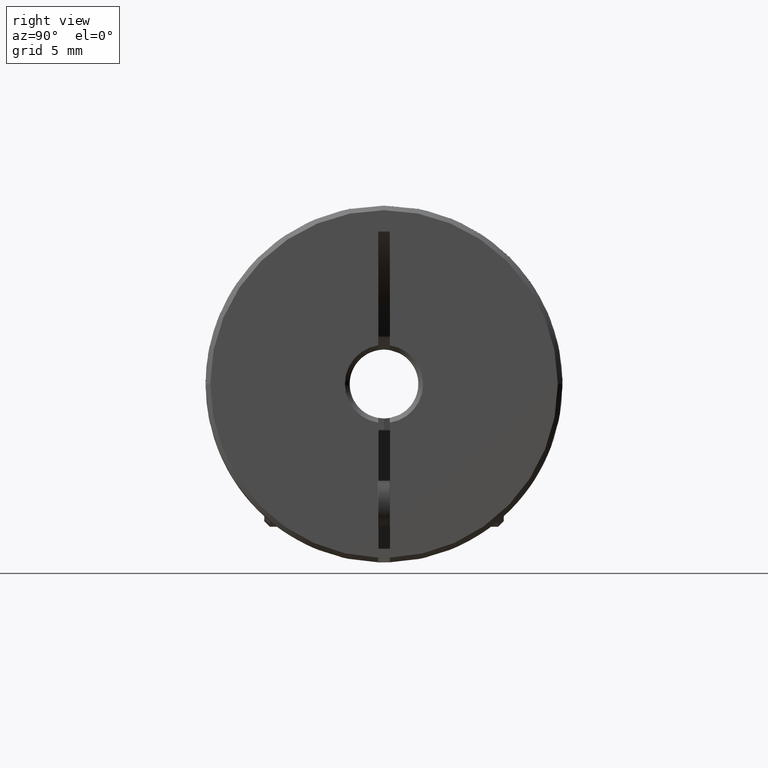
[diagram: clean part render]
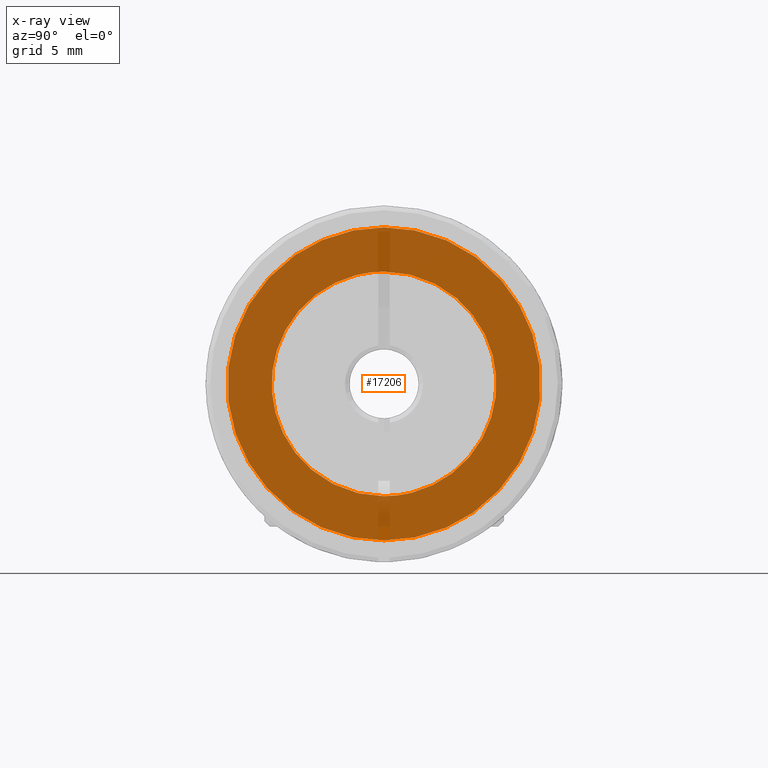
[diagram: x-ray — body ghosted, one internal face saturated and labeled with its STEP entity id]
A machine part, right view, then the same camera in x-ray: the body is ghosted and one INTERNAL B-rep face — a face not visible from any outside direction — is saturated and labeled: STEP entity #17206.
In plain terms, the highlighted planar face has unit normal (1, 0, -0).
Its self-contained STEP definition (entity closure, byte-faithful):
#41 = CARTESIAN_POINT ( 'NONE',  ( -0.3017066929133856434, 0.2634443512680011978, 0.04764816867437932785 ) ) ;
#84 = CARTESIAN_POINT ( 'NONE',  ( -0.3017066929133856434, -0.2148991425139813727, 0.1597773958210919332 ) ) ;
#94 = CARTESIAN_POINT ( 'NONE',  ( -0.3017066929133855879, 0.1764793355975048106, 0.07597440669499742893 ) ) ;
#144 = CARTESIAN_POINT ( 'NONE',  ( -0.3017066929133855879, 0.2472215217568769496, -0.1027373560989110063 ) ) ;
#160 = FACE_BOUND ( 'NONE', #4820, .T. ) ;
#168 = CARTESIAN_POINT ( 'NONE',  ( -0.3017066929133854769, 3.367172273551341089E-17, -0.1921259841171484295 ) ) ;
#192 = CARTESIAN_POINT ( 'NONE',  ( -0.3017066929133855879, -0.2616691484029767811, -0.05724531232257804025 ) ) ;
#249 = CARTESIAN_POINT ( 'NONE',  ( -0.3017066929133855879, 0.09047890071363717812, 0.2521137222691293145 ) ) ;
#278 = CARTESIAN_POINT ( 'NONE',  ( -0.3017066929133854769, -0.1774173848589738756, -0.07372996158252527465 ) ) ;
#299 = CARTESIAN_POINT ( 'NONE',  ( -0.3017066929133855879, -0.06356203882389535598, -0.2601263115402671078 ) ) ;
#354 = CARTESIAN_POINT ( 'NONE',  ( -0.3017066929133856434, 0.2662254475944536569, -0.03262693169461451659 ) ) ;
#363 = B_SPLINE_CURVE_WITH_KNOTS ( 'NONE', 3,
 ( #168, #11732, #8240, #5318, #8662, #11519, #11841, #6891, #2256, #14771, #11411, #10253, #14664, #16672, #8548, #598, #13313, #6563, #5100, #12980, #18139, #5209, #16565, #19498, #19390, #278, #19707, #3740, #14883, #19602, #3419, #10141, #2051, #4999, #3521, #385, #17827, #14986, #9827, #16250, #1947, #6669, #1842, #7000, #13091, #2159, #8344, #19820, #6784, #3628, #17935, #9933, #16354, #11624, #13197, #10033, #18038, #13416, #16459, #8446, #488, #5420, #18248, #3842, #995, #17190 ),
 .UNSPECIFIED., .F., .F.,
 ( 4, 1, 1, 1, 1, 2, 2, 1, 2, 2, 2, 1, 2, 2, 1, 1, 1, 2, 2, 2, 1, 1, 1, 1, 2, 2, 1, 2, 2, 2, 1, 2, 2, 1, 1, 2, 2, 1, 1, 1, 2, 2, 4 ),
 ( 0.0000000000000000000, 0.06250000000000041633, 0.09375000000000062450, 0.1093750000000007216, 0.1171875000000007772, 0.1210937500000008604, 0.1250000000000009437, 0.1562500000000012212, 0.1718750000000012490, 0.1875000000000013045, 0.2500000000000012768, 0.2812500000000013323, 0.2968750000000013878, 0.3125000000000014433, 0.3437500000000017208, 0.3593750000000018319, 0.3671875000000018319, 0.3710937500000018874, 0.3750000000000018874, 0.5000000000000018874, 0.5625000000000018874, 0.5937500000000018874, 0.6093750000000018874, 0.6171875000000017764, 0.6210937500000017764, 0.6250000000000017764, 0.6562500000000017764, 0.6718750000000017764, 0.6875000000000017764, 0.7500000000000018874, 0.7812500000000018874, 0.7968750000000018874, 0.8125000000000018874, 0.8437500000000018874, 0.8593750000000018874, 0.8671875000000017764, 0.8750000000000016653, 0.9062500000000014433, 0.9218750000000013323, 0.9296875000000012212, 0.9335937500000011102, 0.9375000000000009992, 1.000000000000000000 ),
 .UNSPECIFIED. ) ;
#385 = CARTESIAN_POINT ( 'NONE',  ( -0.3017066929133855879, -0.1797389799994455750, 0.06787524116459918433 ) ) ;
#403 = CARTESIAN_POINT ( 'NONE',  ( -0.3017066929133855879, -0.03262002748589796358, -0.2662267257904554207 ) ) ;
#472 = VERTEX_POINT ( 'NONE', #3604 ) ;
#488 = CARTESIAN_POINT ( 'NONE',  ( -0.3017066929133855879, -0.03801979431511910007, 0.1883280841707859754 ) ) ;
#598 = CARTESIAN_POINT ( 'NONE',  ( -0.3017066929133855324, -0.1264837597906122435, -0.1452213452114073655 ) ) ;
#950 = CARTESIAN_POINT ( 'NONE',  ( -0.3017066929133856434, 0.06073278447617427855, 0.1823250253209839078 ) ) ;
#995 = CARTESIAN_POINT ( 'NONE',  ( -0.3017066929133856434, -0.01175836420397940660, 0.1921259841546079372 ) ) ;
#1046 = CARTESIAN_POINT ( 'NONE',  ( -0.3017066929133856434, 0.07675108137136645026, 0.1762498013812585085 ) ) ;
#1093 = CARTESIAN_POINT ( 'NONE',  ( -0.3017066929133855324, 0.04165996228536091028, -0.2644692159776824703 ) ) ;
#1184 = ORIENTED_EDGE ( 'NONE', *, *, #1763, .T. ) ;
#1197 = CARTESIAN_POINT ( 'NONE',  ( -0.3017066929133855879, 0.04764816867437689230, -0.2634443512680014199 ) ) ;
#1350 = CARTESIAN_POINT ( 'NONE',  ( -0.3017066929133855879, 0.1532131545805348882, 0.1159730884570505521 ) ) ;
#1449 = CARTESIAN_POINT ( 'NONE',  ( -0.3017066929133856990, -0.06987222338621215667, 0.2586947543440086261 ) ) ;
#1462 = CARTESIAN_POINT ( 'NONE',  ( -0.3017066929133856434, 0.1264837597906474098, 0.1452213452113883252 ) ) ;
#1552 = CARTESIAN_POINT ( 'NONE',  ( -0.3017066929133855879, -0.2624247266507407361, 0.05297720132857115100 ) ) ;
#1562 = CARTESIAN_POINT ( 'NONE',  ( -0.3017066929133856434, 0.1023605774057313872, 0.1626208437812856900 ) ) ;
#1607 = CARTESIAN_POINT ( 'NONE',  ( -0.3017066929133855324, 0.2323907515470342855, 0.1330539286350604089 ) ) ;
#1650 = CARTESIAN_POINT ( 'NONE',  ( -0.3017066929133856990, -0.2050781903850349142, 0.1725277598777279486 ) ) ;
#1660 = CARTESIAN_POINT ( 'NONE',  ( -0.3017066929133855879, 0.1471715595208409610, 0.1238167504791770068 ) ) ;
#1710 = CARTESIAN_POINT ( 'NONE',  ( -0.3017066929133855879, 0.2485204501938230170, -0.09955330781033572274 ) ) ;
#1754 = CARTESIAN_POINT ( 'NONE',  ( -0.3017066929133855879, -0.2639632075664825606, -0.04468327314615948287 ) ) ;
#1763 = EDGE_CURVE ( 'NONE', #19738, #472, #6189, .T. ) ;
#1766 = CARTESIAN_POINT ( 'NONE',  ( -0.3017066929133855879, 0.1855234953787487096, -0.05064757010546512561 ) ) ;
#1817 = CARTESIAN_POINT ( 'NONE',  ( -0.3017066929133855879, 0.1058641245702942046, 0.2459147844425793594 ) ) ;
#1842 = CARTESIAN_POINT ( 'NONE',  ( -0.3017066929133855879, -0.1626208438297385706, 0.1023605773898124960 ) ) ;
#1921 = CARTESIAN_POINT ( 'NONE',  ( -0.3017066929133855879, 0.2480800698151733319, -0.1006461891803104997 ) ) ;
#1947 = CARTESIAN_POINT ( 'NONE',  ( -0.3017066929133855879, -0.1675550833919140503, 0.09406806364658271136 ) ) ;
#2021 = CARTESIAN_POINT ( 'NONE',  ( -0.3017066929133855879, 0.2148991425140299172, -0.1597773958210626788 ) ) ;
#2051 = CARTESIAN_POINT ( 'NONE',  ( -0.3017066929133855879, -0.1855234953787617269, 0.05064757010544659183 ) ) ;
#2075 = CARTESIAN_POINT ( 'NONE',  ( -0.3017066929133856434, -0.1597773958210627898, -0.2148991425140298617 ) ) ;
#2121 = B_SPLINE_CURVE_WITH_KNOTS ( 'NONE', 3,
 ( #18502, #4104, #10516, #2517, #950, #4204, #10609, #2617, #9020, #1046, #7466, #20281, #6282, #1562, #12496, #1462, #12701, #1660, #1350, #8066, #11338, #17446, #3031, #20591, #94, #2927, #4613, #9330, #18916, #15761, #9537, #4510, #1766, #14378, #3238, #6085, #20794, #6183, #11226, #20489, #17652, #7963, #17758, #6382, #11018, #16181, #9432, #12595, #15861, #19014, #3344, #9647, #7865, #14282, #12796, #7762, #10918, #20692, #9750, #17345, #4713, #4816, #19219, #17547, #16073, #19114 ),
 .UNSPECIFIED., .F., .F.,
 ( 4, 1, 1, 1, 1, 2, 2, 1, 2, 2, 2, 1, 2, 2, 1, 1, 1, 2, 2, 2, 1, 1, 1, 1, 2, 2, 1, 2, 2, 2, 1, 2, 2, 1, 1, 2, 2, 1, 1, 1, 2, 2, 4 ),
 ( 0.0000000000000000000, 0.06250000000000019429, 0.09375000000000027756, 0.1093750000000003053, 0.1171875000000003469, 0.1210937500000003331, 0.1250000000000003053, 0.1562500000000001943, 0.1718750000000001388, 0.1875000000000000833, 0.2499999999999997502, 0.2812499999999996114, 0.2968749999999995559, 0.3124999999999994449, 0.3437499999999991118, 0.3593749999999988898, 0.3671874999999987788, 0.3710937499999987232, 0.3749999999999986677, 0.4999999999999986677, 0.5624999999999986677, 0.5937499999999986677, 0.6093749999999986677, 0.6171874999999986677, 0.6210937499999986677, 0.6249999999999986677, 0.6562499999999986677, 0.6718749999999986677, 0.6874999999999985567, 0.7499999999999990008, 0.7812499999999991118, 0.7968749999999991118, 0.8124999999999992228, 0.8437499999999993339, 0.8593749999999993339, 0.8671874999999993339, 0.8749999999999993339, 0.9062499999999993339, 0.9218749999999994449, 0.9296874999999994449, 0.9335937499999994449, 0.9374999999999994449, 1.000000000000000000 ),
 .UNSPECIFIED. ) ;
#2159 = CARTESIAN_POINT ( 'NONE',  ( -0.3017066929133856434, -0.1311697068366785290, 0.1405384995318166574 ) ) ;
#2229 = CARTESIAN_POINT ( 'NONE',  ( -0.3017066929133855324, 0.03262002748591652512, 0.2662267257904554207 ) ) ;
#2256 = CARTESIAN_POINT ( 'NONE',  ( -0.3017066929133855879, -0.06996674299765927307, -0.1789348288021516686 ) ) ;
#2340 = CARTESIAN_POINT ( 'NONE',  ( -0.3017066929133855324, 0.05084865981369840471, 0.2628453632847724819 ) ) ;
#2517 = CARTESIAN_POINT ( 'NONE',  ( -0.3017066929133856434, 0.05065197033231246676, 0.1855217538326229543 ) ) ;
#2617 = CARTESIAN_POINT ( 'NONE',  ( -0.3017066929133855879, 0.06929954854565251177, 0.1791941634675335293 ) ) ;
#2663 = CARTESIAN_POINT ( 'NONE',  ( -0.3017066929133856434, 0.03459122235816080443, -0.2655283775204794194 ) ) ;
#2680 = ORIENTED_EDGE ( 'NONE', *, *, #7329, .T. ) ;
#2874 = CARTESIAN_POINT ( 'NONE',  ( -0.3017066929133855879, 0.04468486303288962680, -0.2639629134819499456 ) ) ;
#2927 = CARTESIAN_POINT ( 'NONE',  ( -0.3017066929133856434, 0.1774173848589663816, 0.07372996158254462029 ) ) ;
#2979 = CARTESIAN_POINT ( 'NONE',  ( -0.3017066929133856434, 0.1069506475217330693, -0.2455927376649895966 ) ) ;
#3020 = CARTESIAN_POINT ( 'NONE',  ( -0.3017066929133856990, -0.2497514438920577229, -0.09644363856348667219 ) ) ;
#3031 = CARTESIAN_POINT ( 'NONE',  ( -0.3017066929133855879, 0.1692488716473461163, 0.09133251806736228384 ) ) ;
#3124 = CARTESIAN_POINT ( 'NONE',  ( -0.3017066929133856434, -0.2215239849093198210, 0.1503482482320301350 ) ) ;
#3180 = CARTESIAN_POINT ( 'NONE',  ( -0.3017066929133856434, 0.2636138938659520758, 0.04669961500674715826 ) ) ;
#3192 = VERTEX_POINT ( 'NONE', #9064 ) ;
#3226 = CARTESIAN_POINT ( 'NONE',  ( -0.3017066929133855879, -0.2459147844425640383, 0.1058641245703254713 ) ) ;
#3238 = CARTESIAN_POINT ( 'NONE',  ( -0.3017066929133856434, 0.1805427786974521664, -0.06573692637925708515 ) ) ;
#3285 = CARTESIAN_POINT ( 'NONE',  ( -0.3017066929133856434, 0.2617748782861136769, -0.05616441327064453093 ) ) ;
#3334 = CARTESIAN_POINT ( 'NONE',  ( -0.3017066929133855879, -0.2504933135342075623, -0.09449829711491136708 ) ) ;
#3344 = CARTESIAN_POINT ( 'NONE',  ( -0.3017066929133855879, 0.09970514810676044115, -0.1643581846317471173 ) ) ;
#3395 = CARTESIAN_POINT ( 'NONE',  ( -0.3017066929133855879, 0.1272623904481321733, 0.2358407771276859743 ) ) ;
#3419 = CARTESIAN_POINT ( 'NONE',  ( -0.3017066929133856990, -0.1921273110860811095, 0.01220873402346659732 ) ) ;
#3500 = CARTESIAN_POINT ( 'NONE',  ( -0.3017066929133856990, 0.1958340877234115152, -0.1827753016552505494 ) ) ;
#3521 = CARTESIAN_POINT ( 'NONE',  ( -0.3017066929133855879, -0.1805427786974562188, 0.06573692637925133975 ) ) ;
#3599 = CARTESIAN_POINT ( 'NONE',  ( -0.3017066929133856990, 0.2504933135342242712, 0.09449829711483570538 ) ) ;
#3604 = CARTESIAN_POINT ( 'NONE',  ( -0.3017066929133856990, 4.484019189172476442E-17, -0.2677165354330707792 ) ) ;
#3628 = CARTESIAN_POINT ( 'NONE',  ( -0.3017066929133855879, -0.1078472446387096356, 0.1590337872247383211 ) ) ;
#3652 = CARTESIAN_POINT ( 'NONE',  ( -0.3017066929133855879, -0.2253406146660621723, -0.1445648055604512316 ) ) ;
#3740 = CARTESIAN_POINT ( 'NONE',  ( -0.3017066929133855879, -0.1783555444295481240, -0.07142999937213138917 ) ) ;
#3760 = CARTESIAN_POINT ( 'NONE',  ( -0.3017066929133856990, -0.2289042017769294945, -0.1388540622553818549 ) ) ;
#3842 = CARTESIAN_POINT ( 'NONE',  ( -0.3017066929133856434, -0.02341164105137143181, 0.1910568266526682657 ) ) ;
#3968 = CARTESIAN_POINT ( 'NONE',  ( -0.3017066929133855879, -0.1272623904480119639, -0.2358407771277377662 ) ) ;
#4094 = EDGE_CURVE ( 'NONE', #3192, #5412, #363, .T. ) ;
#4104 = CARTESIAN_POINT ( 'NONE',  ( -0.3017066929133856434, 0.01221208657455299246, 0.1921259841548527691 ) ) ;
#4204 = CARTESIAN_POINT ( 'NONE',  ( -0.3017066929133856990, 0.06573830145528559987, 0.1805422344199295037 ) ) ;
#4510 = CARTESIAN_POINT ( 'NONE',  ( -0.3017066929133855879, 0.1904421197410999522, -0.03020535433674568365 ) ) ;
#4601 = CARTESIAN_POINT ( 'NONE',  ( -0.3017066929133856434, -0.03459122235816080443, 0.2655283775204793639 ) ) ;
#4613 = CARTESIAN_POINT ( 'NONE',  ( -0.3017066929133855879, 0.1780337153989893229, 0.07222886205975560803 ) ) ;
#4702 = CARTESIAN_POINT ( 'NONE',  ( -0.3017066929133856434, -0.1958340877233743782, 0.1827753016552728371 ) ) ;
#4713 = CARTESIAN_POINT ( 'NONE',  ( -0.3017066929133856990, 0.03801979431511224444, -0.1883280841707871966 ) ) ;
#4762 = CARTESIAN_POINT ( 'NONE',  ( -0.3017066929133855879, 0.2624247266507408471, -0.05297720132856668929 ) ) ;
#4805 = CARTESIAN_POINT ( 'NONE',  ( -0.3017066929133856990, -0.2480800698151627570, 0.1006461891803347997 ) ) ;
#4816 = CARTESIAN_POINT ( 'NONE',  ( -0.3017066929133856434, 0.03649184386390869755, -0.1886300709777174456 ) ) ;
#4820 = EDGE_LOOP ( 'NONE', ( #17768, #5269 ) ) ;
#4863 = CARTESIAN_POINT ( 'NONE',  ( -0.3017066929133856434, 0.2677171734469657172, 0.008180479340402099786 ) ) ;
#4912 = CARTESIAN_POINT ( 'NONE',  ( -0.3017066929133855324, -0.05724531232248497581, 0.2616691484030003734 ) ) ;
#4973 = CARTESIAN_POINT ( 'NONE',  ( -0.3017066929133855879, 0.1483886281187818401, 0.2228406858414995473 ) ) ;
#4999 = CARTESIAN_POINT ( 'NONE',  ( -0.3017066929133856434, -0.1823260412492761218, 0.06073021767395828802 ) ) ;
#5018 = CARTESIAN_POINT ( 'NONE',  ( -0.3017066929133855879, -0.2630609601871485292, 0.04971999211072652969 ) ) ;
#5074 = CARTESIAN_POINT ( 'NONE',  ( -0.3017066929133855879, 0.06356203882392102988, 0.2601263115402600024 ) ) ;
#5100 = CARTESIAN_POINT ( 'NONE',  ( -0.3017066929133854769, -0.1532131545805589246, -0.1159730884570374376 ) ) ;
#5185 = CARTESIAN_POINT ( 'NONE',  ( -0.3017066929133855879, 0.2050781903850997234, -0.1725277598776891186 ) ) ;
#5209 = CARTESIAN_POINT ( 'NONE',  ( -0.3017066929133856434, -0.1643581846816395964, -0.09970514809175155813 ) ) ;
#5269 = ORIENTED_EDGE ( 'NONE', *, *, #4094, .T. ) ;
#5318 = CARTESIAN_POINT ( 'NONE',  ( -0.3017066929133855879, -0.05065197033231808726, -0.1855217538326227877 ) ) ;
#5335 = CARTESIAN_POINT ( 'NONE',  ( -0.3017066929133855879, -0.2323907515469471885, -0.1330539286351827555 ) ) ;
#5412 = VERTEX_POINT ( 'NONE', #17944 ) ;
#5420 = CARTESIAN_POINT ( 'NONE',  ( -0.3017066929133855324, -0.03649184386391227802, 0.1886300709777168072 ) ) ;
#5441 = CARTESIAN_POINT ( 'NONE',  ( -0.3017066929133855324, -0.2265289980310842277, -0.1426949681686026095 ) ) ;
#5926 = CARTESIAN_POINT ( 'NONE',  ( -0.3017066929133856990, 0.06987222338612777972, -0.2586947543440241692 ) ) ;
#6085 = CARTESIAN_POINT ( 'NONE',  ( -0.3017066929133856990, 0.1797389799994432436, -0.06787524116460255663 ) ) ;
#6173 = CARTESIAN_POINT ( 'NONE',  ( -0.3017066929133857545, -0.08430737880981649390, 0.2541615783569541875 ) ) ;
#6183 = CARTESIAN_POINT ( 'NONE',  ( -0.3017066929133855879, 0.1789348288680898402, -0.06996674299054291002 ) ) ;
#6189 = B_SPLINE_CURVE_WITH_KNOTS ( 'NONE', 3,
 ( #6479, #16063, #20783, #4601, #8156, #14271, #12895, #16169, #4912, #1449, #6173, #19310, #9740, #13004, #19005, #9422, #11437, #19102, #14577, #17851, #9848, #11005, #4702, #1650, #84, #15851, #3124, #17537, #17640, #9526, #20580, #3226, #7854, #4805, #11327, #12584, #15954, #7752, #14369, #1552, #9636, #5018, #17435, #6370, #20682, #7952, #12785, #19414, #1754, #19208, #17748, #192, #11215, #12691, #8055, #3334, #3020, #14471, #6583, #5335, #3760, #5441, #3652, #15112, #18059, #19728, #10056, #2075, #11858, #7019, #8364, #11752, #3968, #13434, #16271, #11542, #10164, #7129, #19622, #11960, #299, #19841, #8466, #16477, #17956, #403, #14905, #18268 ),
 .UNSPECIFIED., .F., .F.,
 ( 4, 1, 1, 1, 2, 2, 1, 1, 2, 2, 1, 1, 2, 2, 2, 1, 1, 2, 2, 1, 1, 1, 2, 2, 1, 1, 1, 2, 2, 2, 1, 1, 1, 2, 2, 1, 1, 2, 2, 1, 1, 2, 2, 2, 1, 1, 2, 2, 1, 1, 1, 2, 2, 1, 1, 1, 2, 2, 4 ),
 ( 0.0000000000000000000, 0.03125000000000065226, 0.04687500000000097145, 0.05468750000000112410, 0.05859375000000118655, 0.06250000000000124900, 0.09375000000000181799, 0.1093750000000020678, 0.1171875000000022343, 0.1250000000000023870, 0.1562500000000030254, 0.1718750000000033307, 0.1796875000000034694, 0.1875000000000036082, 0.2500000000000049960, 0.2812500000000056621, 0.2968750000000061062, 0.3046875000000062172, 0.3125000000000062172, 0.3437500000000062728, 0.3593750000000063283, 0.3671875000000063283, 0.3710937500000063838, 0.3750000000000063838, 0.4062500000000063838, 0.4218750000000063838, 0.4296875000000063838, 0.4335937500000063838, 0.4375000000000063838, 0.5000000000000064393, 0.5312500000000065503, 0.5468750000000065503, 0.5546875000000065503, 0.5585937500000065503, 0.5625000000000065503, 0.5937500000000062172, 0.6093750000000059952, 0.6171875000000058842, 0.6250000000000057732, 0.6562500000000054401, 0.6718750000000053291, 0.6796875000000052180, 0.6875000000000049960, 0.7500000000000039968, 0.7812500000000034417, 0.7968750000000031086, 0.8046875000000028866, 0.8125000000000027756, 0.8437500000000023315, 0.8593750000000021094, 0.8671875000000018874, 0.8710937500000018874, 0.8750000000000017764, 0.9062500000000013323, 0.9218750000000011102, 0.9296875000000009992, 0.9335937500000009992, 0.9375000000000008882, 1.000000000000000000 ),
 .UNSPECIFIED. ) ;
#6282 = CARTESIAN_POINT ( 'NONE',  ( -0.3017066929133856990, 0.09965596568261546329, 0.1642914523439757413 ) ) ;
#6329 = CARTESIAN_POINT ( 'NONE',  ( -0.3017066929133855879, 0.1619554494995473493, -0.2139729285998484831 ) ) ;
#6370 = CARTESIAN_POINT ( 'NONE',  ( -0.3017066929133855879, -0.2677152594052678025, 0.01636095868078933299 ) ) ;
#6382 = CARTESIAN_POINT ( 'NONE',  ( -0.3017066929133856990, 0.1535595567178518750, -0.1162237526632487611 ) ) ;
#6435 = CARTESIAN_POINT ( 'NONE',  ( -0.3017066929133857545, 0.2189015860743486475, -0.1541426186576217994 ) ) ;
#6479 = CARTESIAN_POINT ( 'NONE',  ( -0.3017066929133856990, -2.825754588938532754E-17, 0.2677165354330707792 ) ) ;
#6538 = CARTESIAN_POINT ( 'NONE',  ( -0.3017066929133855879, 0.1597773958211219925, 0.2148991425139707423 ) ) ;
#6563 = CARTESIAN_POINT ( 'NONE',  ( -0.3017066929133856434, -0.1471715595208715477, -0.1238167504791604367 ) ) ;
#6583 = CARTESIAN_POINT ( 'NONE',  ( -0.3017066929133856990, -0.2399922434024057971, -0.1192488602688097782 ) ) ;
#6644 = CARTESIAN_POINT ( 'NONE',  ( -0.3017066929133855879, 0.09955330781033565335, 0.2485204501938230448 ) ) ;
#6669 = CARTESIAN_POINT ( 'NONE',  ( -0.3017066929133855879, -0.1642914523938854010, 0.09965596566760706598 ) ) ;
#6759 = CARTESIAN_POINT ( 'NONE',  ( -0.3017066929133856434, 0.2644697044570707423, 0.04165732145656046714 ) ) ;
#6784 = CARTESIAN_POINT ( 'NONE',  ( -0.3017066929133855324, -0.1106349347517818077, 0.1571094479326815563 ) ) ;
#6891 = CARTESIAN_POINT ( 'NONE',  ( -0.3017066929133856434, -0.06929954854565308076, -0.1791941634675335848 ) ) ;
#7000 = CARTESIAN_POINT ( 'NONE',  ( -0.3017066929133856434, -0.1535595567178607845, 0.1162237526632131090 ) ) ;
#7019 = CARTESIAN_POINT ( 'NONE',  ( -0.3017066929133856990, -0.1503482482320197544, -0.2215239849093372237 ) ) ;
#7036 = EDGE_LOOP ( 'NONE', ( #2680, #1184 ) ) ;
#7078 = CARTESIAN_POINT ( 'NONE',  ( -0.3017066929133856434, 0.05297720132856666153, 0.2624247266507408471 ) ) ;
#7129 = CARTESIAN_POINT ( 'NONE',  ( -0.3017066929133855879, -0.09955330781033810972, -0.2485204501938223232 ) ) ;
#7278 = CARTESIAN_POINT ( 'NONE',  ( -0.3017066929133855879, 0.05616441327064454481, 0.2617748782861136769 ) ) ;
#7329 = EDGE_CURVE ( 'NONE', #472, #19738, #15699, .T. ) ;
#7466 = CARTESIAN_POINT ( 'NONE',  ( -0.3017066929133856434, 0.08557555538161330799, 0.1722312948429578772 ) ) ;
#7611 = CARTESIAN_POINT ( 'NONE',  ( -0.3017066929133856434, 0.09449829711484512840, -0.2504933135342228834 ) ) ;
#7710 = CARTESIAN_POINT ( 'NONE',  ( -0.3017066929133856990, 0.09644363856350064712, -0.2497514438920462043 ) ) ;
#7752 = CARTESIAN_POINT ( 'NONE',  ( -0.3017066929133855879, -0.2601263115402596138, 0.06356203882393376969 ) ) ;
#7762 = CARTESIAN_POINT ( 'NONE',  ( -0.3017066929133855879, 0.07216725141313663772, -0.1780635827710084496 ) ) ;
#7854 = CARTESIAN_POINT ( 'NONE',  ( -0.3017066929133854769, -0.2472215217568568546, 0.1027373560989571499 ) ) ;
#7865 = CARTESIAN_POINT ( 'NONE',  ( -0.3017066929133855879, 0.08116101609825540630, -0.1741956797675559276 ) ) ;
#7952 = CARTESIAN_POINT ( 'NONE',  ( -0.3017066929133855879, -0.2671589733414178047, -0.02040515359176650959 ) ) ;
#7963 = CARTESIAN_POINT ( 'NONE',  ( -0.3017066929133855879, 0.1642914523939000837, -0.09965596566757534136 ) ) ;
#8011 = CARTESIAN_POINT ( 'NONE',  ( -0.3017066929133856990, 0.2265289980311153417, 0.1426949681685589499 ) ) ;
#8055 = CARTESIAN_POINT ( 'NONE',  ( -0.3017066929133856990, -0.2519909923085757453, -0.09043039381628031892 ) ) ;
#8066 = CARTESIAN_POINT ( 'NONE',  ( -0.3017066929133855324, 0.1571094479766839969, 0.1106349347328549892 ) ) ;
#8115 = CARTESIAN_POINT ( 'NONE',  ( -0.3017066929133856434, 0.1725277598777682220, 0.2050781903850207588 ) ) ;
#8129 = FACE_OUTER_BOUND ( 'NONE', #7036, .T. ) ;
#8156 = CARTESIAN_POINT ( 'NONE',  ( -0.3017066929133856990, -0.04165996228536097273, 0.2644692159776825813 ) ) ;
#8214 = CARTESIAN_POINT ( 'NONE',  ( -0.3017066929133855879, 0.1027373560989383455, 0.2472215217568661527 ) ) ;
#8240 = CARTESIAN_POINT ( 'NONE',  ( -0.3017066929133856990, -0.03021122130203991035, -0.1904397976940205850 ) ) ;
#8318 = CARTESIAN_POINT ( 'NONE',  ( -0.3017066929133855879, 0.2521137222691292035, -0.09047890071363715037 ) ) ;
#8344 = CARTESIAN_POINT ( 'NONE',  ( -0.3017066929133855879, -0.1238167505034934862, 0.1471715594839397012 ) ) ;
#8364 = CARTESIAN_POINT ( 'NONE',  ( -0.3017066929133857545, -0.1483886281187989375, -0.2228406858414921921 ) ) ;
#8418 = CARTESIAN_POINT ( 'NONE',  ( -0.3017066929133855879, 0.2616691484030121417, 0.05724531232241676648 ) ) ;
#8446 = CARTESIAN_POINT ( 'NONE',  ( -0.3017066929133856434, -0.04030765712139981055, 0.1878615578181840884 ) ) ;
#8466 = CARTESIAN_POINT ( 'NONE',  ( -0.3017066929133855879, -0.05297720132855771036, -0.2624247266507433451 ) ) ;
#8548 = CARTESIAN_POINT ( 'NONE',  ( -0.3017066929133856434, -0.1162237526840336627, -0.1535595566768956644 ) ) ;
#8662 = CARTESIAN_POINT ( 'NONE',  ( -0.3017066929133855879, -0.06073278447617752596, -0.1823250253209839356 ) ) ;
#9020 = CARTESIAN_POINT ( 'NONE',  ( -0.3017066929133855879, 0.06996674299766118821, 0.1789348288021508082 ) ) ;
#9064 = CARTESIAN_POINT ( 'NONE',  ( -0.3017066929133854769, 3.367172273551341089E-17, -0.1921259841171484295 ) ) ;
#9330 = CARTESIAN_POINT ( 'NONE',  ( -0.3017066929133855879, 0.1783555444295475967, 0.07142999937213291572 ) ) ;
#9422 = CARTESIAN_POINT ( 'NONE',  ( -0.3017066929133855879, -0.1192488602688493854, 0.2399922434024140405 ) ) ;
#9432 = CARTESIAN_POINT ( 'NONE',  ( -0.3017066929133855879, 0.1238167505034259569, -0.1471715594839838881 ) ) ;
#9526 = CARTESIAN_POINT ( 'NONE',  ( -0.3017066929133855879, -0.2358407771276513909, 0.1272623904482033386 ) ) ;
#9537 = CARTESIAN_POINT ( 'NONE',  ( -0.3017066929133856434, 0.1921273110860710898, -0.01220873402348068848 ) ) ;
#9587 = CARTESIAN_POINT ( 'NONE',  ( -0.3017066929133856434, 0.2399922434025221207, 0.1192488602686467142 ) ) ;
#9636 = CARTESIAN_POINT ( 'NONE',  ( -0.3017066929133855879, -0.2628453632847724819, 0.05084865981370078475 ) ) ;
#9647 = CARTESIAN_POINT ( 'NONE',  ( -0.3017066929133856434, 0.09133251807967254776, -0.1692488715929594267 ) ) ;
#9694 = CARTESIAN_POINT ( 'NONE',  ( -0.3017066929133855879, 0.2586947543440292208, 0.06987222338609291872 ) ) ;
#9740 = CARTESIAN_POINT ( 'NONE',  ( -0.3017066929133854769, -0.09449829711486777695, 0.2504933135342186090 ) ) ;
#9750 = CARTESIAN_POINT ( 'NONE',  ( -0.3017066929133856434, 0.04561756357566153219, -0.1866781733333442994 ) ) ;
#9802 = CARTESIAN_POINT ( 'NONE',  ( -0.3017066929133856434, 0.2139729285998741015, 0.1619554494995217586 ) ) ;
#9819 = DIRECTION ( 'NONE',  ( 1.000000000000000000, 2.775557561562892584E-17, -1.550701171185240690E-17 ) ) ;
#9827 = CARTESIAN_POINT ( 'NONE',  ( -0.3017066929133855879, -0.1762498014435313343, 0.07675108136281552640 ) ) ;
#9848 = CARTESIAN_POINT ( 'NONE',  ( -0.3017066929133855879, -0.1619554494996910676, 0.2139729285997346575 ) ) ;
#9908 = CARTESIAN_POINT ( 'NONE',  ( -0.3017066929133854769, 0.1388540622553341708, -0.2289042017769686577 ) ) ;
#9933 = CARTESIAN_POINT ( 'NONE',  ( -0.3017066929133855879, -0.09133251807969491876, 0.1692488715929447718 ) ) ;
#10013 = CARTESIAN_POINT ( 'NONE',  ( -0.3017066929133856434, 0.2455927376650093308, 0.1069506475216961960 ) ) ;
#10033 = CARTESIAN_POINT ( 'NONE',  ( -0.3017066929133856990, -0.07216725141313296010, 0.1780635827710091712 ) ) ;
#10056 = CARTESIAN_POINT ( 'NONE',  ( -0.3017066929133855879, -0.1725277598776892296, -0.2050781903850997512 ) ) ;
#10141 = CARTESIAN_POINT ( 'NONE',  ( -0.3017066929133855879, -0.1904421197411174105, 0.03020535433672102282 ) ) ;
#10164 = CARTESIAN_POINT ( 'NONE',  ( -0.3017066929133855324, -0.1006461891803082237, -0.2480800698151747474 ) ) ;
#10200 = EDGE_CURVE ( 'NONE', #5412, #3192, #2121, .T. ) ;
#10253 = CARTESIAN_POINT ( 'NONE',  ( -0.3017066929133855879, -0.09406806365984095308, -0.1675550833389811978 ) ) ;
#10516 = CARTESIAN_POINT ( 'NONE',  ( -0.3017066929133856434, 0.03021122130203239206, 0.1904397976940205850 ) ) ;
#10609 = CARTESIAN_POINT ( 'NONE',  ( -0.3017066929133855879, 0.06787604656930062985, 0.1797386611812130386 ) ) ;
#10918 = CARTESIAN_POINT ( 'NONE',  ( -0.3017066929133856434, 0.06493378621004021467, -0.1809281310262242093 ) ) ;
#10961 = CARTESIAN_POINT ( 'NONE',  ( -0.3017066929133856434, 0.08430737880975321119, -0.2541615783569657339 ) ) ;
#11005 = CARTESIAN_POINT ( 'NONE',  ( -0.3017066929133855879, -0.1762443574747304120, 0.2023619296109332999 ) ) ;
#11018 = CARTESIAN_POINT ( 'NONE',  ( -0.3017066929133856990, 0.1452213452468409660, -0.1264837597653107881 ) ) ;
#11173 = CARTESIAN_POINT ( 'NONE',  ( -0.3017066929133855879, 0.2358407771277271081, -0.1272623904480282842 ) ) ;
#11215 = CARTESIAN_POINT ( 'NONE',  ( -0.3017066929133855879, -0.2586947543439671038, -0.06987222338637490149 ) ) ;
#11226 = CARTESIAN_POINT ( 'NONE',  ( -0.3017066929133855324, 0.1762498014435480709, -0.07675108136277919435 ) ) ;
#11273 = CARTESIAN_POINT ( 'NONE',  ( -0.3017066929133856434, 0.2253406146660661968, 0.1445648055604472071 ) ) ;
#11327 = CARTESIAN_POINT ( 'NONE',  ( -0.3017066929133856434, -0.2485204501938230448, 0.09955330781033461252 ) ) ;
#11338 = CARTESIAN_POINT ( 'NONE',  ( -0.3017066929133855879, 0.1590337872702329569, 0.1078472446208422059 ) ) ;
#11385 = CARTESIAN_POINT ( 'NONE',  ( -0.3017066929133855324, 0.1426949681685760751, -0.2265289980311060436 ) ) ;
#11401 = PLANE ( 'NONE',  #12863 ) ;
#11411 = CARTESIAN_POINT ( 'NONE',  ( -0.3017066929133855879, -0.08557555538163996722, -0.1722312948429456370 ) ) ;
#11437 = CARTESIAN_POINT ( 'NONE',  ( -0.3017066929133856434, -0.1330539286352126482, 0.2323907515469532115 ) ) ;
#11495 = CARTESIAN_POINT ( 'NONE',  ( -0.3017066929133855879, 0.2630609601871476966, -0.04971999211073006159 ) ) ;
#11519 = CARTESIAN_POINT ( 'NONE',  ( -0.3017066929133856990, -0.06573830145528754276, -0.1805422344199294482 ) ) ;
#11542 = CARTESIAN_POINT ( 'NONE',  ( -0.3017066929133855879, -0.1027373560989067042, -0.2472215217568797530 ) ) ;
#11602 = CARTESIAN_POINT ( 'NONE',  ( -0.3017066929133856434, 0.2497514438920412361, 0.09644363856350980646 ) ) ;
#11624 = CARTESIAN_POINT ( 'NONE',  ( -0.3017066929133855879, -0.07671535090269857027, 0.1761530989966292315 ) ) ;
#11732 = CARTESIAN_POINT ( 'NONE',  ( -0.3017066929133856434, -0.01221208657455727375, -0.1921259841548527414 ) ) ;
#11752 = CARTESIAN_POINT ( 'NONE',  ( -0.3017066929133856990, -0.1389309841820811631, -0.2290249488164781411 ) ) ;
#11841 = CARTESIAN_POINT ( 'NONE',  ( -0.3017066929133855879, -0.06787604656930167069, -0.1797386611812129831 ) ) ;
#11858 = CARTESIAN_POINT ( 'NONE',  ( -0.3017066929133856434, -0.1541426186576219104, -0.2189015860743486475 ) ) ;
#11960 = CARTESIAN_POINT ( 'NONE',  ( -0.3017066929133855324, -0.07820048068415275111, -0.2563001624683333146 ) ) ;
#12496 = CARTESIAN_POINT ( 'NONE',  ( -0.3017066929133856990, 0.1162237526840620566, 0.1535595566768834241 ) ) ;
#12540 = CARTESIAN_POINT ( 'NONE',  ( -0.3017066929133856434, 0.008183928586182314530, -0.2677165354330707792 ) ) ;
#12584 = CARTESIAN_POINT ( 'NONE',  ( -0.3017066929133856990, -0.2521137222691289814, 0.09047890071364682318 ) ) ;
#12595 = CARTESIAN_POINT ( 'NONE',  ( -0.3017066929133855879, 0.1159730884780419136, -0.1532131545394404548 ) ) ;
#12691 = CARTESIAN_POINT ( 'NONE',  ( -0.3017066929133855879, -0.2541615783569230458, -0.08430737880993863231 ) ) ;
#12701 = CARTESIAN_POINT ( 'NONE',  ( -0.3017066929133855324, 0.1405384995647365742, 0.1311697068088031326 ) ) ;
#12743 = CARTESIAN_POINT ( 'NONE',  ( -0.3017066929133855879, 0.2215239849093370572, -0.1503482482320196711 ) ) ;
#12785 = CARTESIAN_POINT ( 'NONE',  ( -0.3017066929133856434, -0.2655292149137252200, -0.03458669522306471317 ) ) ;
#12796 = CARTESIAN_POINT ( 'NONE',  ( -0.3017066929133856434, 0.07373236298104833553, -0.1774219026122065557 ) ) ;
#12843 = CARTESIAN_POINT ( 'NONE',  ( -0.3017066929133855324, 0.2228406858414935521, -0.1483886281187965506 ) ) ;
#12863 = AXIS2_PLACEMENT_3D ( 'NONE', #12972, #9819, #19382 ) ;
#12895 = CARTESIAN_POINT ( 'NONE',  ( -0.3017066929133856434, -0.04670045037095955920, 0.2636137393469619727 ) ) ;
#12954 = CARTESIAN_POINT ( 'NONE',  ( -0.3017066929133855879, 0.1541426186576599355, 0.2189015860743106223 ) ) ;
#12972 = CARTESIAN_POINT ( 'NONE',  ( -0.3017066929133855879, 0.2677165354330707792, 2.456207218103864222E-17 ) ) ;
#12980 = CARTESIAN_POINT ( 'NONE',  ( -0.3017066929133856434, -0.1571094479766993457, -0.1106349347328466903 ) ) ;
#13004 = CARTESIAN_POINT ( 'NONE',  ( -0.3017066929133855324, -0.09644363856348092678, 0.2497514438920564461 ) ) ;
#13063 = CARTESIAN_POINT ( 'NONE',  ( -0.3017066929133855879, 0.2427333241214336690, -0.1130900443240962921 ) ) ;
#13091 = CARTESIAN_POINT ( 'NONE',  ( -0.3017066929133856990, -0.1452213452467638333, 0.1264837597653611923 ) ) ;
#13171 = CARTESIAN_POINT ( 'NONE',  ( -0.3017066929133855879, 0.2541615783569695641, 0.08430737880972695442 ) ) ;
#13197 = CARTESIAN_POINT ( 'NONE',  ( -0.3017066929133855879, -0.07373236298105433073, 0.1774219026122026144 ) ) ;
#13285 = CARTESIAN_POINT ( 'NONE',  ( -0.3017066929133855324, 0.04972042362377367131, 0.2630608802998976037 ) ) ;
#13313 = CARTESIAN_POINT ( 'NONE',  ( -0.3017066929133856990, -0.1405384995647541435, -0.1311697068087936680 ) ) ;
#13416 = CARTESIAN_POINT ( 'NONE',  ( -0.3017066929133856990, -0.05612361610941597051, 0.1839321123818976333 ) ) ;
#13434 = CARTESIAN_POINT ( 'NONE',  ( -0.3017066929133855879, -0.1130900443240840519, -0.2427333241214415516 ) ) ;
#13922 = CARTESIAN_POINT ( 'NONE',  ( -0.3017066929133856434, 0.04670045037095960083, -0.2636137393469619727 ) ) ;
#14121 = CARTESIAN_POINT ( 'NONE',  ( -0.3017066929133855879, 0.1192488602687109961, -0.2399922434024873708 ) ) ;
#14271 = CARTESIAN_POINT ( 'NONE',  ( -0.3017066929133856990, -0.04468486303288960598, 0.2639629134819500011 ) ) ;
#14282 = CARTESIAN_POINT ( 'NONE',  ( -0.3017066929133856990, 0.07671535090268780110, -0.1761530989966363925 ) ) ;
#14369 = CARTESIAN_POINT ( 'NONE',  ( -0.3017066929133856990, -0.2617748782861135659, 0.05616441327065196942 ) ) ;
#14378 = CARTESIAN_POINT ( 'NONE',  ( -0.3017066929133855879, 0.1823260412492684057, -0.06073021767396905718 ) ) ;
#14422 = CARTESIAN_POINT ( 'NONE',  ( -0.3017066929133856434, 0.2290249488164719793, -0.1389309841820905167 ) ) ;
#14471 = CARTESIAN_POINT ( 'NONE',  ( -0.3017066929133855879, -0.2455927376649429394, -0.1069506475217893715 ) ) ;
#14532 = CARTESIAN_POINT ( 'NONE',  ( -0.3017066929133855324, 0.2289042017769853665, 0.1388540622553032233 ) ) ;
#14577 = CARTESIAN_POINT ( 'NONE',  ( -0.3017066929133856990, -0.1426949681686132398, 0.2265289980310864759 ) ) ;
#14641 = CARTESIAN_POINT ( 'NONE',  ( -0.3017066929133855324, 0.1006461891803248493, 0.2480800698151676420 ) ) ;
#14664 = CARTESIAN_POINT ( 'NONE',  ( -0.3017066929133854769, -0.09965596568262878596, -0.1642914523439695240 ) ) ;
#14745 = CARTESIAN_POINT ( 'NONE',  ( -0.3017066929133856990, 0.2677152594052811807, -0.01636095868080412324 ) ) ;
#14771 = CARTESIAN_POINT ( 'NONE',  ( -0.3017066929133855324, -0.07675108137138171582, -0.1762498013812514863 ) ) ;
#14856 = CARTESIAN_POINT ( 'NONE',  ( -0.3017066929133855879, 0.2519909923086055548, 0.09043039381614423333 ) ) ;
#14883 = CARTESIAN_POINT ( 'NONE',  ( -0.3017066929133855324, -0.1876268303447690133, -0.04801844614458238708 ) ) ;
#14905 = CARTESIAN_POINT ( 'NONE',  ( -0.3017066929133856990, -0.01638185482969592779, -0.2677165354330708347 ) ) ;
#14986 = CARTESIAN_POINT ( 'NONE',  ( -0.3017066929133855879, -0.1789348288680918664, 0.06996674299053841362 ) ) ;
#15112 = CARTESIAN_POINT ( 'NONE',  ( -0.3017066929133856434, -0.2139729285999061592, -0.1619554494994898675 ) ) ;
#15300 = CARTESIAN_POINT ( 'NONE',  ( -0.3017066929133856990, -2.825754588938532754E-17, 0.2677165354330707792 ) ) ;
#15605 = CARTESIAN_POINT ( 'NONE',  ( -0.3017066929133855879, 0.02041118977189470413, -0.2671578568170899781 ) ) ;
#15699 = B_SPLINE_CURVE_WITH_KNOTS ( 'NONE', 3,
 ( #15907, #12540, #15605, #2663, #1093, #2874, #13922, #1197, #20331, #5926, #10961, #17395, #7611, #7710, #2979, #14121, #20537, #9908, #11385, #19581, #6329, #16330, #3500, #5185, #2021, #6435, #12743, #12843, #14422, #11173, #13063, #16009, #144, #1921, #1710, #8318, #19163, #19266, #3285, #4762, #16435, #11495, #354, #14745, #4863, #17591, #17911, #6759, #18015, #3180, #41, #8418, #9694, #13171, #14856, #3599, #11602, #10013, #9587, #1607, #14532, #8011, #11273, #9802, #16121, #17698, #8115, #6538, #12954, #19363, #4973, #17802, #3395, #16228, #1817, #8214, #14641, #6644, #249, #19471, #5074, #7278, #7078, #2340, #13285, #2229, #16537, #18531 ),
 .UNSPECIFIED., .F., .F.,
 ( 4, 1, 1, 1, 2, 2, 1, 1, 2, 2, 1, 1, 2, 2, 2, 1, 1, 2, 2, 1, 1, 1, 2, 2, 1, 1, 1, 2, 2, 2, 1, 1, 1, 2, 2, 1, 1, 2, 2, 1, 1, 2, 2, 2, 1, 1, 2, 2, 1, 1, 1, 2, 2, 1, 1, 1, 2, 2, 4 ),
 ( 0.0000000000000000000, 0.03125000000000011796, 0.04687500000000015959, 0.05468750000000019429, 0.05859375000000019429, 0.06250000000000019429, 0.09375000000000009714, 0.1093750000000000416, 0.1171875000000000278, 0.1250000000000000000, 0.1562499999999999722, 0.1718750000000000000, 0.1796875000000000278, 0.1875000000000000555, 0.2499999999999998612, 0.2812499999999998335, 0.2968749999999998335, 0.3046874999999998335, 0.3124999999999997780, 0.3437499999999994449, 0.3593749999999992784, 0.3671874999999992784, 0.3710937499999992784, 0.3749999999999992784, 0.4062499999999995004, 0.4218749999999996114, 0.4296874999999996114, 0.4335937499999996114, 0.4374999999999996669, 0.5000000000000001110, 0.5312500000000003331, 0.5468750000000004441, 0.5546875000000004441, 0.5585937500000004441, 0.5625000000000004441, 0.5937500000000005551, 0.6093750000000006661, 0.6171875000000006661, 0.6250000000000006661, 0.6562500000000008882, 0.6718750000000011102, 0.6796875000000011102, 0.6875000000000011102, 0.7500000000000008882, 0.7812500000000008882, 0.7968750000000007772, 0.8046875000000007772, 0.8125000000000007772, 0.8437500000000007772, 0.8593750000000007772, 0.8671875000000006661, 0.8710937500000006661, 0.8750000000000005551, 0.9062500000000004441, 0.9218750000000003331, 0.9296875000000003331, 0.9335937500000003331, 0.9375000000000003331, 1.000000000000000000 ),
 .UNSPECIFIED. ) ;
#15761 = CARTESIAN_POINT ( 'NONE',  ( -0.3017066929133856434, 0.1921233305837637406, 0.02441746804696141512 ) ) ;
#15851 = CARTESIAN_POINT ( 'NONE',  ( -0.3017066929133855879, -0.2189015860743175612, 0.1541426186576404789 ) ) ;
#15861 = CARTESIAN_POINT ( 'NONE',  ( -0.3017066929133856434, 0.1106349347517480847, -0.1571094479327036497 ) ) ;
#15907 = CARTESIAN_POINT ( 'NONE',  ( -0.3017066929133856990, 4.484019189172476442E-17, -0.2677165354330707792 ) ) ;
#15954 = CARTESIAN_POINT ( 'NONE',  ( -0.3017066929133855879, -0.2563001624683232671, 0.07820048068420397402 ) ) ;
#16009 = CARTESIAN_POINT ( 'NONE',  ( -0.3017066929133856990, 0.2459147844425974283, -0.1058641245702488659 ) ) ;
#16063 = CARTESIAN_POINT ( 'NONE',  ( -0.3017066929133855879, -0.008183928586182281570, 0.2677165354330707792 ) ) ;
#16073 = CARTESIAN_POINT ( 'NONE',  ( -0.3017066929133855879, 0.01175836420397941527, -0.1921259841546079095 ) ) ;
#16121 = CARTESIAN_POINT ( 'NONE',  ( -0.3017066929133856990, 0.2023619296108874199, 0.1762443574747464825 ) ) ;
#16169 = CARTESIAN_POINT ( 'NONE',  ( -0.3017066929133856990, -0.04764816867437083464, 0.2634443512680026411 ) ) ;
#16181 = CARTESIAN_POINT ( 'NONE',  ( -0.3017066929133855879, 0.1311697068366398378, -0.1405384995318418595 ) ) ;
#16228 = CARTESIAN_POINT ( 'NONE',  ( -0.3017066929133855879, 0.1130900443241742021, 0.2427333241214027770 ) ) ;
#16250 = CARTESIAN_POINT ( 'NONE',  ( -0.3017066929133855879, -0.1722312949004632665, 0.08557555537090734410 ) ) ;
#16271 = CARTESIAN_POINT ( 'NONE',  ( -0.3017066929133856990, -0.1058641245702417466, -0.2459147844426020080 ) ) ;
#16330 = CARTESIAN_POINT ( 'NONE',  ( -0.3017066929133855324, 0.1762443574746562491, -0.2023619296109775700 ) ) ;
#16354 = CARTESIAN_POINT ( 'NONE',  ( -0.3017066929133855879, -0.08116101609827219843, 0.1741956797675449919 ) ) ;
#16435 = CARTESIAN_POINT ( 'NONE',  ( -0.3017066929133856434, 0.2628453632847724819, -0.05084865981369841165 ) ) ;
#16459 = CARTESIAN_POINT ( 'NONE',  ( -0.3017066929133856990, -0.04561756357568110681, 0.1866781733333406912 ) ) ;
#16477 = CARTESIAN_POINT ( 'NONE',  ( -0.3017066929133855324, -0.05084865981369375565, -0.2628453632847738142 ) ) ;
#16537 = CARTESIAN_POINT ( 'NONE',  ( -0.3017066929133856990, 0.01638185482971454832, 0.2677165354330708902 ) ) ;
#16565 = CARTESIAN_POINT ( 'NONE',  ( -0.3017066929133855879, -0.1692488716473747601, -0.09133251806728862054 ) ) ;
#16672 = CARTESIAN_POINT ( 'NONE',  ( -0.3017066929133855324, -0.1023605774057384232, -0.1626208437812825536 ) ) ;
#17190 = CARTESIAN_POINT ( 'NONE',  ( -0.3017066929133854769, -2.264338033758771013E-17, 0.1921259841171484295 ) ) ;
#17206 = ADVANCED_FACE ( 'NONE', ( #8129, #160 ), #11401, .T. ) ;
#17345 = CARTESIAN_POINT ( 'NONE',  ( -0.3017066929133856434, 0.04030765712138841689, -0.1878615578181862811 ) ) ;
#17395 = CARTESIAN_POINT ( 'NONE',  ( -0.3017066929133856434, 0.09043039381616112260, -0.2519909923086032233 ) ) ;
#17435 = CARTESIAN_POINT ( 'NONE',  ( -0.3017066929133855324, -0.2662254475944401677, 0.03262693169467133919 ) ) ;
#17446 = CARTESIAN_POINT ( 'NONE',  ( -0.3017066929133856434, 0.1643581846816231651, 0.09970514809179369109 ) ) ;
#17537 = CARTESIAN_POINT ( 'NONE',  ( -0.3017066929133856990, -0.2228406858415045988, 0.1483886281187715706 ) ) ;
#17547 = CARTESIAN_POINT ( 'NONE',  ( -0.3017066929133855879, 0.02341164105137148038, -0.1910568266526682657 ) ) ;
#17591 = CARTESIAN_POINT ( 'NONE',  ( -0.3017066929133855324, 0.2671589733414060919, 0.02040515359177938470 ) ) ;
#17640 = CARTESIAN_POINT ( 'NONE',  ( -0.3017066929133856434, -0.2290249488164287639, 0.1389309841821906311 ) ) ;
#17652 = CARTESIAN_POINT ( 'NONE',  ( -0.3017066929133856990, 0.1675550833919371430, -0.09406806364653284847 ) ) ;
#17698 = CARTESIAN_POINT ( 'NONE',  ( -0.3017066929133855324, 0.1827753016552957077, 0.1958340877233662458 ) ) ;
#17748 = CARTESIAN_POINT ( 'NONE',  ( -0.3017066929133856434, -0.2634443512680056387, -0.04764816867435927444 ) ) ;
#17758 = CARTESIAN_POINT ( 'NONE',  ( -0.3017066929133855879, 0.1626208438297408743, -0.1023605773898035864 ) ) ;
#17768 = ORIENTED_EDGE ( 'NONE', *, *, #10200, .T. ) ;
#17802 = CARTESIAN_POINT ( 'NONE',  ( -0.3017066929133856434, 0.1389309841821499414, 0.2290249488164484981 ) ) ;
#17827 = CARTESIAN_POINT ( 'NONE',  ( -0.3017066929133855879, -0.1791943267966251974, 0.06929913601773764198 ) ) ;
#17851 = CARTESIAN_POINT ( 'NONE',  ( -0.3017066929133856434, -0.1445648055604259741, 0.2253406146660835163 ) ) ;
#17911 = CARTESIAN_POINT ( 'NONE',  ( -0.3017066929133855879, 0.2655292149137164492, 0.03458669522307429578 ) ) ;
#17935 = CARTESIAN_POINT ( 'NONE',  ( -0.3017066929133856434, -0.09970514810677318096, 0.1643581846317387352 ) ) ;
#17944 = CARTESIAN_POINT ( 'NONE',  ( -0.3017066929133854769, -2.264338033758771013E-17, 0.1921259841171484295 ) ) ;
#17956 = CARTESIAN_POINT ( 'NONE',  ( -0.3017066929133855879, -0.04972042362377488561, -0.2630608802998976592 ) ) ;
#18015 = CARTESIAN_POINT ( 'NONE',  ( -0.3017066929133855879, 0.2639632075664796185, 0.04468327314616279966 ) ) ;
#18038 = CARTESIAN_POINT ( 'NONE',  ( -0.3017066929133856434, -0.06493378621005525819, 0.1809281310262214892 ) ) ;
#18059 = CARTESIAN_POINT ( 'NONE',  ( -0.3017066929133855879, -0.2023619296109774868, -0.1762443574746565544 ) ) ;
#18139 = CARTESIAN_POINT ( 'NONE',  ( -0.3017066929133855879, -0.1590337872702247413, -0.1078472446208632168 ) ) ;
#18248 = CARTESIAN_POINT ( 'NONE',  ( -0.3017066929133855324, -0.03568159238535115185, 0.1887848669543030211 ) ) ;
#18268 = CARTESIAN_POINT ( 'NONE',  ( -0.3017066929133856990, 4.484019189172476442E-17, -0.2677165354330707792 ) ) ;
#18502 = CARTESIAN_POINT ( 'NONE',  ( -0.3017066929133854769, -2.264338033758771013E-17, 0.1921259841171484295 ) ) ;
#18531 = CARTESIAN_POINT ( 'NONE',  ( -0.3017066929133856990, -2.825754588938532754E-17, 0.2677165354330707792 ) ) ;
#18916 = CARTESIAN_POINT ( 'NONE',  ( -0.3017066929133856434, 0.1876268303447890529, 0.04801844614452965843 ) ) ;
#19005 = CARTESIAN_POINT ( 'NONE',  ( -0.3017066929133856990, -0.1069506475218121727, 0.2455927376649475191 ) ) ;
#19014 = CARTESIAN_POINT ( 'NONE',  ( -0.3017066929133856990, 0.1078472446387160749, -0.1590337872247341300 ) ) ;
#19102 = CARTESIAN_POINT ( 'NONE',  ( -0.3017066929133855879, -0.1388540622554009507, 0.2289042017769333248 ) ) ;
#19114 = CARTESIAN_POINT ( 'NONE',  ( -0.3017066929133854769, 3.367172273551341089E-17, -0.1921259841171484295 ) ) ;
#19163 = CARTESIAN_POINT ( 'NONE',  ( -0.3017066929133855879, 0.2563001624683237112, -0.07820048068418707088 ) ) ;
#19208 = CARTESIAN_POINT ( 'NONE',  ( -0.3017066929133855879, -0.2636138938659536302, -0.04669961500674545130 ) ) ;
#19219 = CARTESIAN_POINT ( 'NONE',  ( -0.3017066929133856990, 0.03568159238535120736, -0.1887848669543029934 ) ) ;
#19266 = CARTESIAN_POINT ( 'NONE',  ( -0.3017066929133855879, 0.2601263115402599468, -0.06356203882392112703 ) ) ;
#19310 = CARTESIAN_POINT ( 'NONE',  ( -0.3017066929133855324, -0.09043039381620189554, 0.2519909923085956183 ) ) ;
#19363 = CARTESIAN_POINT ( 'NONE',  ( -0.3017066929133855879, 0.1503482482320409319, 0.2215239849093158797 ) ) ;
#19382 = DIRECTION ( 'NONE',  ( -1.550701171185240998E-17, 7.427073164652317819E-17, -1.000000000000000000 ) ) ;
#19390 = CARTESIAN_POINT ( 'NONE',  ( -0.3017066929133855879, -0.1764793355975173839, -0.07597440669496526022 ) ) ;
#19414 = CARTESIAN_POINT ( 'NONE',  ( -0.3017066929133855879, -0.2644697044570759048, -0.04165732145655486746 ) ) ;
#19471 = CARTESIAN_POINT ( 'NONE',  ( -0.3017066929133855324, 0.07820048068418704312, 0.2563001624683237112 ) ) ;
#19498 = CARTESIAN_POINT ( 'NONE',  ( -0.3017066929133856434, -0.1741956798274596485, -0.08116101608855053051 ) ) ;
#19581 = CARTESIAN_POINT ( 'NONE',  ( -0.3017066929133854769, 0.1445648055604438487, -0.2253406146660693055 ) ) ;
#19602 = CARTESIAN_POINT ( 'NONE',  ( -0.3017066929133855879, -0.1921233305837437844, -0.02441746804693311484 ) ) ;
#19622 = CARTESIAN_POINT ( 'NONE',  ( -0.3017066929133855879, -0.09047890071361752717, -0.2521137222691346991 ) ) ;
#19707 = CARTESIAN_POINT ( 'NONE',  ( -0.3017066929133856434, -0.1780337153989932919, -0.07222886205974547724 ) ) ;
#19728 = CARTESIAN_POINT ( 'NONE',  ( -0.3017066929133855879, -0.1827753016552507437, -0.1958340877234114596 ) ) ;
#19738 = VERTEX_POINT ( 'NONE', #15300 ) ;
#19820 = CARTESIAN_POINT ( 'NONE',  ( -0.3017066929133855879, -0.1159730884780949683, 0.1532131545394058159 ) ) ;
#19841 = CARTESIAN_POINT ( 'NONE',  ( -0.3017066929133855879, -0.05616441327062948047, -0.2617748782861177848 ) ) ;
#20281 = CARTESIAN_POINT ( 'NONE',  ( -0.3017066929133855879, 0.09406806365981996987, 0.1675550833389907734 ) ) ;
#20331 = CARTESIAN_POINT ( 'NONE',  ( -0.3017066929133855879, 0.05724531232243678519, -0.2616691484030092552 ) ) ;
#20489 = CARTESIAN_POINT ( 'NONE',  ( -0.3017066929133855879, 0.1722312949004926041, -0.08557555537084388098 ) ) ;
#20537 = CARTESIAN_POINT ( 'NONE',  ( -0.3017066929133854769, 0.1330539286351087314, -0.2323907515470081675 ) ) ;
#20580 = CARTESIAN_POINT ( 'NONE',  ( -0.3017066929133856434, -0.2427333241213768533, 0.1130900443242276732 ) ) ;
#20591 = CARTESIAN_POINT ( 'NONE',  ( -0.3017066929133855879, 0.1741956798274382767, 0.08116101608860568084 ) ) ;
#20682 = CARTESIAN_POINT ( 'NONE',  ( -0.3017066929133855879, -0.2677171734469723785, -0.008180479340394810478 ) ) ;
#20692 = CARTESIAN_POINT ( 'NONE',  ( -0.3017066929133856990, 0.05612361610938965822, -0.1839321123819024628 ) ) ;
#20783 = CARTESIAN_POINT ( 'NONE',  ( -0.3017066929133856434, -0.02041118977189465902, 0.2671578568170899781 ) ) ;
#20794 = CARTESIAN_POINT ( 'NONE',  ( -0.3017066929133856990, 0.1791943267966240871, -0.06929913601773930731 ) ) ;